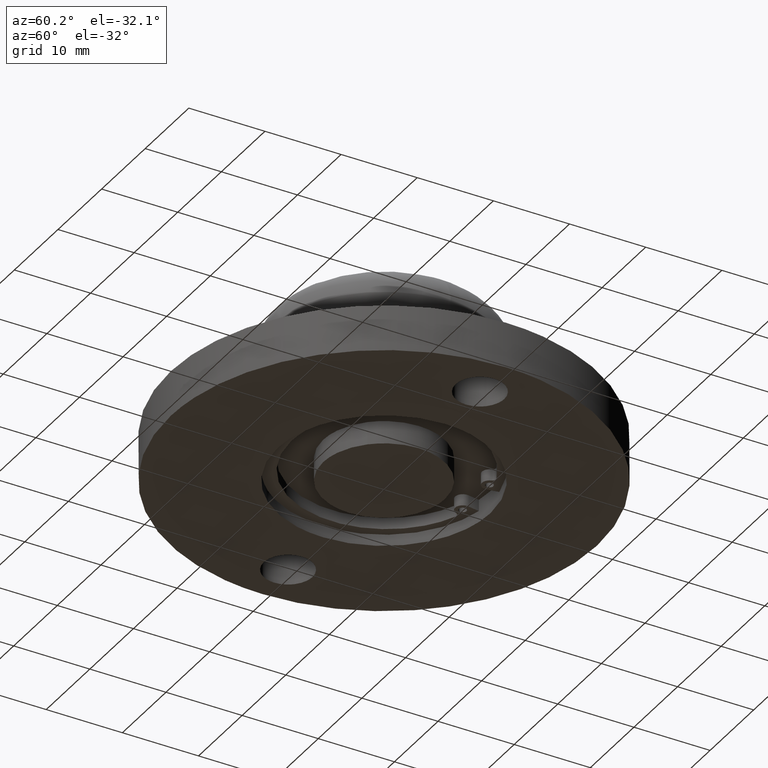
[diagram: clean part render]
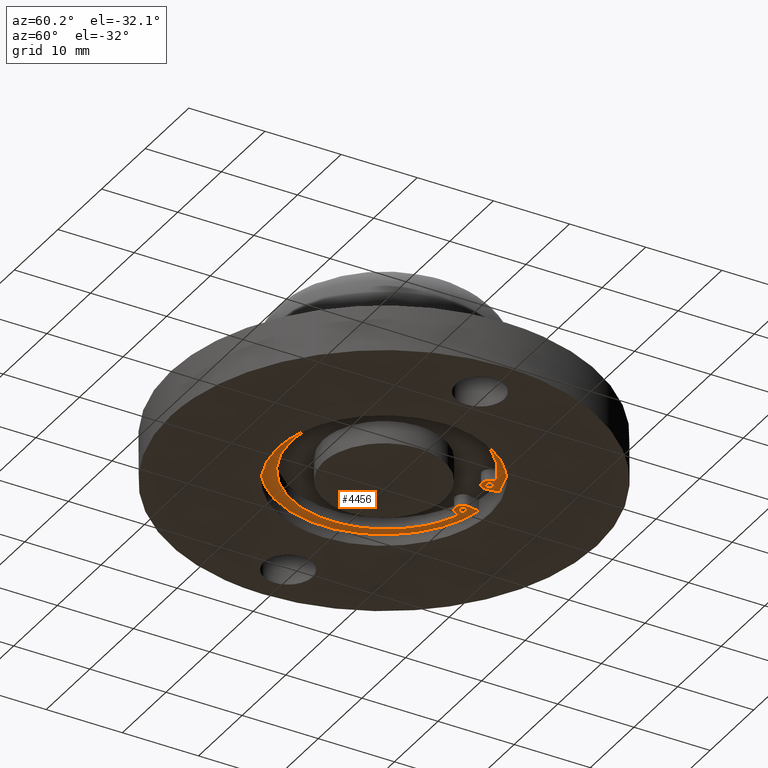
[diagram: same view with one face highlighted and labeled with its STEP entity id]
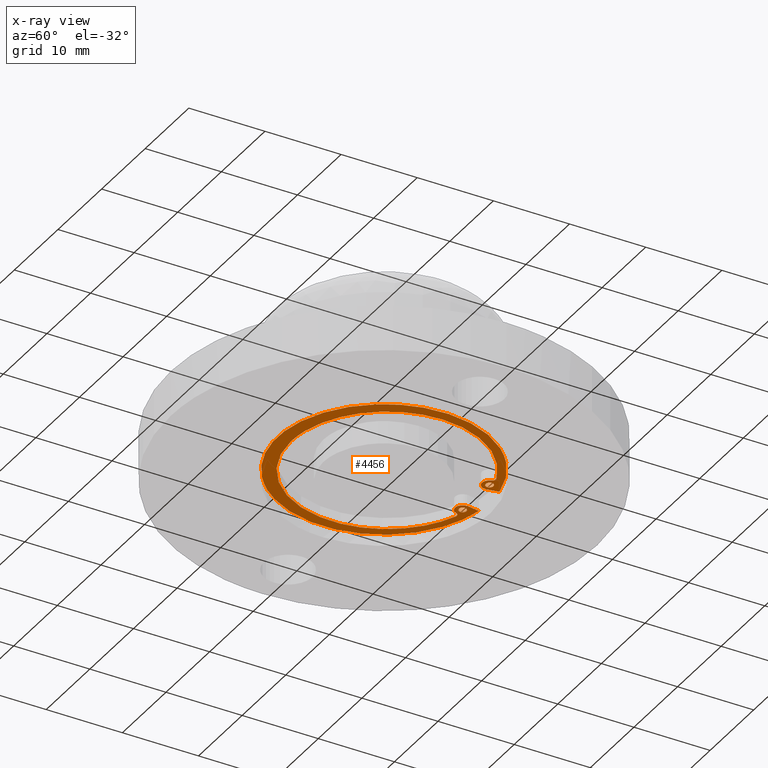
[diagram: x-ray of the same camera — body ghosted, the highlighted face saturated]
A machine part, auxiliary view. The second image highlights one B-rep face of the part: STEP entity #4456.
The next image is the same camera in x-ray: the body ghosted, the highlighted face saturated — about 0% of this face is hidden behind the body in this view.
In plain terms, the highlighted face is a freeform B-spline surface patch.
Its self-contained STEP definition (entity closure, byte-faithful):
#3751=CARTESIAN_POINT('',(2.722137768902407,12.452215655510511,1.500000000000055));
#3752=VERTEX_POINT('',#3751);
#3758=CARTESIAN_POINT('',(3.078764214129789,12.601761372921040,1.500000000000055));
#3759=VERTEX_POINT('',#3758);
#3760=CARTESIAN_POINT('',(2.722137768902407,12.452215655510511,1.500000000000055));
#3761=CARTESIAN_POINT('',(2.774249977008201,12.505421505308250,1.500000000000056));
#3762=CARTESIAN_POINT('',(2.888524818853595,12.578503942384470,1.500000000000055));
#3763=CARTESIAN_POINT('',(3.020857522524926,12.601802445376990,1.500000000000056));
#3764=CARTESIAN_POINT('',(3.078764214129789,12.601761372921040,1.500000000000055));
#3765=B_SPLINE_CURVE_WITH_KNOTS('',3,(#3760,#3761,#3762,#3763,#3764),.UNSPECIFIED.,.F.,.U.,(4,1,4),(0.000000045207384,0.223371099848168,0.397104492770973),.UNSPECIFIED.);
#3766=EDGE_CURVE('',#3752,#3759,#3765,.T.);
#3768=CARTESIAN_POINT('',(3.578762863744187,12.101761372922820,1.500000000000055));
#3769=VERTEX_POINT('',#3768);
#3770=CARTESIAN_POINT('',(3.078764214129789,12.601761372921040,1.500000000000055));
#3771=CARTESIAN_POINT('',(3.152415342333071,12.601865471850330,1.500000000000052));
#3772=CARTESIAN_POINT('',(3.291381861096038,12.570475307681431,1.500000000000061));
#3773=CARTESIAN_POINT('',(3.458926883522719,12.446306666323521,1.500000000000053));
#3774=CARTESIAN_POINT('',(3.557468300696662,12.281739290998960,1.500000000000060));
#3775=CARTESIAN_POINT('',(3.578795339807012,12.159031738632841,1.500000000000053));
#3776=CARTESIAN_POINT('',(3.578762863744187,12.101761372922820,1.500000000000055));
#3777=B_SPLINE_CURVE_WITH_KNOTS('',3,(#3770,#3771,#3772,#3773,#3774,#3775,#3776),.UNSPECIFIED.,.F.,.U.,(4,1,1,1,4),(0.000000119736716,0.220915451757991,0.417282150027502,0.613653481792256,0.785476180471632),.UNSPECIFIED.);
#3778=EDGE_CURVE('',#3759,#3769,#3777,.T.);
#3780=CARTESIAN_POINT('',(3.435387958585883,11.751307090335130,1.500000000000055));
#3781=VERTEX_POINT('',#3780);
#3782=CARTESIAN_POINT('',(3.578762863744187,12.101761372922820,1.500000000000055));
#3783=CARTESIAN_POINT('',(3.578804157275215,12.045126659568391,1.500000000000055));
#3784=CARTESIAN_POINT('',(3.556521087084164,11.915702528659811,1.500000000000055));
#3785=CARTESIAN_POINT('',(3.486522957717738,11.803178025602540,1.500000000000056));
#3786=CARTESIAN_POINT('',(3.435387958585883,11.751307090335130,1.500000000000055));
#3787=B_SPLINE_CURVE_WITH_KNOTS('',3,(#3782,#3783,#3784,#3785,#3786),.UNSPECIFIED.,.F.,.U.,(4,1,4),(0.000000040295690,0.169913630573479,0.388373557718587),.UNSPECIFIED.);
#3788=EDGE_CURVE('',#3769,#3781,#3787,.T.);
#3818=CARTESIAN_POINT('',(3.078761513358499,11.601761372924610,1.500000000000055));
#3819=VERTEX_POINT('',#3818);
#3820=CARTESIAN_POINT('',(3.435387958585883,11.751307090335130,1.500000000000055));
#3821=CARTESIAN_POINT('',(3.383276139484543,11.698098478906021,1.500000000000053));
#3822=CARTESIAN_POINT('',(3.269000089564544,11.625024498050831,1.500000000000061));
#3823=CARTESIAN_POINT('',(3.136670066594230,11.601716776088161,1.500000000000054));
#3824=CARTESIAN_POINT('',(3.078761513358499,11.601761372924610,1.500000000000055));
#3825=B_SPLINE_CURVE_WITH_KNOTS('',3,(#3820,#3821,#3822,#3823,#3824),.UNSPECIFIED.,.F.,.U.,(4,1,4),(0.000000045207418,0.223371099848174,0.397104492770974),.UNSPECIFIED.);
#3826=EDGE_CURVE('',#3781,#3819,#3825,.T.);
#3828=CARTESIAN_POINT('',(2.578762863744104,12.101761372922820,1.500000000000055));
#3829=VERTEX_POINT('',#3828);
#3830=CARTESIAN_POINT('',(3.078761513358499,11.601761372924610,1.500000000000055));
#3831=CARTESIAN_POINT('',(3.005110245835275,11.601657087263410,1.500000000000055));
#3832=CARTESIAN_POINT('',(2.866144044151465,11.633047427547959,1.500000000000058));
#3833=CARTESIAN_POINT('',(2.698598873035842,11.757216587272699,1.500000000000055));
#3834=CARTESIAN_POINT('',(2.600057218289814,11.921782612979801,1.500000000000055));
#3835=CARTESIAN_POINT('',(2.578730373805577,12.044492272144710,1.500000000000056));
#3836=CARTESIAN_POINT('',(2.578762863744104,12.101761372922820,1.500000000000055));
#3837=B_SPLINE_CURVE_WITH_KNOTS('',3,(#3830,#3831,#3832,#3833,#3834,#3835,#3836),.UNSPECIFIED.,.F.,.U.,(4,1,1,1,4),(0.000000119736881,0.220915451758067,0.417282150027529,0.613653481792265,0.785476180471628),.UNSPECIFIED.);
#3838=EDGE_CURVE('',#3819,#3829,#3837,.T.);
#3840=CARTESIAN_POINT('',(2.578762863744104,12.101761372922820,1.500000000000055));
#3841=CARTESIAN_POINT('',(2.578649548295534,12.174597843183960,1.500000000000054));
#3842=CARTESIAN_POINT('',(2.607588431147488,12.303923576518351,1.500000000000058));
#3843=CARTESIAN_POINT('',(2.682413606786092,12.411846178024740,1.500000000000052));
#3844=CARTESIAN_POINT('',(2.722137768902407,12.452215655510511,1.500000000000055));
#3845=B_SPLINE_CURVE_WITH_KNOTS('',3,(#3840,#3841,#3842,#3843,#3844),.UNSPECIFIED.,.F.,.U.,(4,1,4),(0.000000040295621,0.218459967518911,0.388373557718586),.UNSPECIFIED.);
#3846=EDGE_CURVE('',#3829,#3752,#3845,.T.);
#3875=CARTESIAN_POINT('',(-3.435387958585999,12.452215655510511,1.500000000000055));
#3876=VERTEX_POINT('',#3875);
#3882=CARTESIAN_POINT('',(-3.078761513358617,12.601761372921040,1.500000000000055));
#3883=VERTEX_POINT('',#3882);
#3884=CARTESIAN_POINT('',(-3.435387958585999,12.452215655510511,1.500000000000055));
#3885=CARTESIAN_POINT('',(-3.394826756930201,12.493548882660971,1.500000000000056));
#3886=CARTESIAN_POINT('',(-3.285461503733669,12.571600477332851,1.500000000000054));
#3887=CARTESIAN_POINT('',(-3.153235405746683,12.601885750049121,1.500000000000056));
#3888=CARTESIAN_POINT('',(-3.078761513358617,12.601761372921040,1.500000000000055));
#3889=B_SPLINE_CURVE_WITH_KNOTS('',3,(#3884,#3885,#3886,#3887,#3888),.UNSPECIFIED.,.F.,.U.,(4,1,4),(0.000000045207360,0.173733438046691,0.397104492770973),.UNSPECIFIED.);
#3890=EDGE_CURVE('',#3876,#3883,#3889,.T.);
#3892=CARTESIAN_POINT('',(-2.578762863744220,12.101761372922820,1.500000000000055));
#3893=VERTEX_POINT('',#3892);
#3894=CARTESIAN_POINT('',(-3.078761513358617,12.601761372921040,1.500000000000055));
#3895=CARTESIAN_POINT('',(-3.005107755859781,12.601865486478831,1.500000000000054));
#3896=CARTESIAN_POINT('',(-2.866145765376994,12.570475209901639,1.500000000000060));
#3897=CARTESIAN_POINT('',(-2.698598174424232,12.446306546286991,1.500000000000054));
#3898=CARTESIAN_POINT('',(-2.600057551849457,12.281739268574711,1.500000000000054));
#3899=CARTESIAN_POINT('',(-2.578730376229462,12.159031773407280,1.500000000000056));
#3900=CARTESIAN_POINT('',(-2.578762863744220,12.101761372922820,1.500000000000055));
#3901=B_SPLINE_CURVE_WITH_KNOTS('',3,(#3894,#3895,#3896,#3897,#3898,#3899,#3900),.UNSPECIFIED.,.F.,.U.,(4,1,1,1,4),(0.000000119736670,0.220915451757951,0.417282150027443,0.613653481792246,0.785476180471634),.UNSPECIFIED.);
#3902=EDGE_CURVE('',#3883,#3893,#3901,.T.);
#3904=CARTESIAN_POINT('',(-2.722137768902523,11.751307090335130,1.500000000000055));
#3905=VERTEX_POINT('',#3904);
#3906=CARTESIAN_POINT('',(-2.578762863744220,12.101761372922820,1.500000000000055));
#3907=CARTESIAN_POINT('',(-2.578733359441765,12.045127528351710,1.500000000000056));
#3908=CARTESIAN_POINT('',(-2.600985898546697,11.915700659980329,1.500000000000056));
#3909=CARTESIAN_POINT('',(-2.671010463605793,11.803178472104801,1.500000000000055));
#3910=CARTESIAN_POINT('',(-2.722137768902523,11.751307090335130,1.500000000000055));
#3911=B_SPLINE_CURVE_WITH_KNOTS('',3,(#3906,#3907,#3908,#3909,#3910),.UNSPECIFIED.,.F.,.U.,(4,1,4),(0.000000040295643,0.169913630573465,0.388373557718586),.UNSPECIFIED.);
#3912=EDGE_CURVE('',#3893,#3905,#3911,.T.);
#3942=CARTESIAN_POINT('',(-3.078764214129908,11.601761372924610,1.500000000000055));
#3943=VERTEX_POINT('',#3942);
#3944=CARTESIAN_POINT('',(-2.722137768902523,11.751307090335130,1.500000000000055));
#3945=CARTESIAN_POINT('',(-2.762699102116523,11.709972452253210,1.500000000000057));
#3946=CARTESIAN_POINT('',(-2.872064191788603,11.631923543916271,1.500000000000052));
#3947=CARTESIAN_POINT('',(-3.004290320487205,11.601636476099250,1.500000000000057));
#3948=CARTESIAN_POINT('',(-3.078764214129908,11.601761372924610,1.500000000000055));
#3949=B_SPLINE_CURVE_WITH_KNOTS('',3,(#3944,#3945,#3946,#3947,#3948),.UNSPECIFIED.,.F.,.U.,(4,1,4),(0.000000045207417,0.173733438046715,0.397104492770976),.UNSPECIFIED.);
#3950=EDGE_CURVE('',#3905,#3943,#3949,.T.);
#3952=CARTESIAN_POINT('',(-3.578762863744301,12.101761372922820,1.500000000000055));
#3953=VERTEX_POINT('',#3952);
#3954=CARTESIAN_POINT('',(-3.078764214129908,11.601761372924610,1.500000000000055));
#3955=CARTESIAN_POINT('',(-3.152415879236950,11.601656706552690,1.500000000000057));
#3956=CARTESIAN_POINT('',(-3.291381589338082,11.633046386831211,1.500000000000054));
#3957=CARTESIAN_POINT('',(-3.458926694736181,11.757218130210850,1.500000000000058));
#3958=CARTESIAN_POINT('',(-3.557468676940402,11.921780453921990,1.500000000000054));
#3959=CARTESIAN_POINT('',(-3.578794831942873,12.044492886310071,1.500000000000053));
#3960=CARTESIAN_POINT('',(-3.578762863744301,12.101761372922820,1.500000000000055));
#3961=B_SPLINE_CURVE_WITH_KNOTS('',3,(#3954,#3955,#3956,#3957,#3958,#3959,#3960),.UNSPECIFIED.,.F.,.U.,(4,1,1,1,4),(0.000000119736476,0.220915451757821,0.417282150027398,0.613653481792238,0.785476180471628),.UNSPECIFIED.);
#3962=EDGE_CURVE('',#3943,#3953,#3961,.T.);
#3964=CARTESIAN_POINT('',(-3.578762863744301,12.101761372922820,1.500000000000055));
#3965=CARTESIAN_POINT('',(-3.578800270676347,12.158394942405810,1.500000000000054));
#3966=CARTESIAN_POINT('',(-3.556527344292177,12.287820601779650,1.500000000000057));
#3967=CARTESIAN_POINT('',(-3.486519816284100,12.400344683109100,1.500000000000053));
#3968=CARTESIAN_POINT('',(-3.435387958585999,12.452215655510511,1.500000000000055));
#3969=B_SPLINE_CURVE_WITH_KNOTS('',3,(#3964,#3965,#3966,#3967,#3968),.UNSPECIFIED.,.F.,.U.,(4,1,4),(0.000000040295697,0.169913630573505,0.388373557718586),.UNSPECIFIED.);
#3970=EDGE_CURVE('',#3953,#3876,#3969,.T.);
#3996=CARTESIAN_POINT('',(-10.536790458268291,-9.218245323191807,1.500000000002626));
#3997=VERTEX_POINT('',#3996);
#3998=CARTESIAN_POINT('',(-11.711069833858531,-7.671430332505807,1.500000000000055));
#3999=VERTEX_POINT('',#3998);
#4000=CARTESIAN_POINT('',(-10.536790458268291,-9.218245323191807,1.500000000002626));
#4001=CARTESIAN_POINT('',(-10.963394210233840,-8.730652885008571,1.500000000001771));
#4002=CARTESIAN_POINT('',(-11.356075721268990,-8.213386337773663,1.500000000000916));
#4003=CARTESIAN_POINT('',(-11.711069833858531,-7.671430332505807,1.500000000000055));
#4004=B_SPLINE_CURVE_WITH_KNOTS('',3,(#4000,#4001,#4002,#4003),.UNSPECIFIED.,.F.,.U.,(4,4),(2.009641E-010,1.943619268830538),.UNSPECIFIED.);
#4005=EDGE_CURVE('',#3997,#3999,#4004,.T.);
#4015=CARTESIAN_POINT('',(10.536790462711480,9.218245318112924,1.500000000002491));
#4016=VERTEX_POINT('',#4015);
#4022=CARTESIAN_POINT('',(2.354388328041705,13.800610696660520,1.500000000000055));
#4023=VERTEX_POINT('',#4022);
#4024=CARTESIAN_POINT('',(2.354388328041705,13.800610696660520,1.500000000000055));
#4025=CARTESIAN_POINT('',(3.360947227541715,13.629093089097340,1.500000000000338));
#4026=CARTESIAN_POINT('',(4.998841473254596,13.160634431530680,1.500000000000800));
#4027=CARTESIAN_POINT('',(7.213982480033956,12.063675612099431,1.500000000001458));
#4028=CARTESIAN_POINT('',(8.990205516676550,10.810103192612861,1.500000000001999));
#4029=CARTESIAN_POINT('',(10.061285559269431,9.761822162654827,1.500000000002336));
#4030=CARTESIAN_POINT('',(10.536790462711480,9.218245318112924,1.500000000002491));
#4031=B_SPLINE_CURVE_WITH_KNOTS('',3,(#4024,#4025,#4026,#4027,#4028,#4029,#4030),.UNSPECIFIED.,.F.,.U.,(4,1,1,1,4),(7.908064E-009,3.063148942067514,5.080334249613651,7.396382966736281,9.562998874206967),.UNSPECIFIED.);
#4032=EDGE_CURVE('',#4023,#4016,#4031,.T.);
#4051=CARTESIAN_POINT('',(-2.354388328041990,13.800610696660501,1.500000000000055));
#4052=VERTEX_POINT('',#4051);
#4058=CARTESIAN_POINT('',(-11.711069833858531,-7.671430332505807,1.500000000000055));
#4059=CARTESIAN_POINT('',(-12.225882528213630,-6.885801511919865,1.500000000000054));
#4060=CARTESIAN_POINT('',(-12.811697589056999,-5.758100824977150,1.500000000000054));
#4061=CARTESIAN_POINT('',(-13.481871079706339,-3.886338784298007,1.500000000000059));
#4062=CARTESIAN_POINT('',(-13.856094325262321,-2.299338557897576,1.500000000000048));
#4063=CARTESIAN_POINT('',(-14.012719929381030,-0.605395900708236,1.500000000000056));
#4064=CARTESIAN_POINT('',(-13.993189496218790,0.985457298373371,1.500000000000054));
#4065=CARTESIAN_POINT('',(-13.775372309042661,2.782503858538648,1.500000000000049));
#4066=CARTESIAN_POINT('',(-13.250107796612070,4.668573958509186,1.500000000000079));
#4067=CARTESIAN_POINT('',(-12.506268453976450,6.357535590512485,1.500000000000051));
#4068=CARTESIAN_POINT('',(-11.669184582051701,7.795904899233562,1.500000000000060));
#4069=CARTESIAN_POINT('',(-10.774339600018250,8.980209284010419,1.500000000000055));
#4070=CARTESIAN_POINT('',(-9.490799424041192,10.353807852463540,1.500000000000031));
#4071=CARTESIAN_POINT('',(-8.055882205516516,11.523133757246740,1.500000000000039));
#4072=CARTESIAN_POINT('',(-6.395883427348704,12.484640510028280,1.500000000000066));
#4073=CARTESIAN_POINT('',(-4.610112287402300,13.275077071768200,1.500000000000053));
#4074=CARTESIAN_POINT('',(-3.280308055570369,13.642800783663480,1.500000000000042));
#4075=CARTESIAN_POINT('',(-2.354388328041990,13.800610696660501,1.500000000000055));
#4076=B_SPLINE_CURVE_WITH_KNOTS('',3,(#4058,#4059,#4060,#4061,#4062,#4063,#4064,#4065,#4066,#4067,#4068,#4069,#4070,#4071,#4072,#4073,#4074,#4075),.UNSPECIFIED.,.F.,.U.,(4,1,1,1,1,1,1,1,1,1,1,1,1,1,1,4),(0.000000051031968,2.817795199470460,3.793185681533235,5.960732736458539,7.694766942847529,8.886918685611359,10.729339117615400,13.113619112368561,14.739242333230990,16.256525894674770,18.098952661025429,19.182723339008600,21.892150864830711,23.626193645066341,24.926728991593890,27.744506666651631),.UNSPECIFIED.);
#4077=EDGE_CURVE('',#3999,#4052,#4076,.T.);
#4100=CARTESIAN_POINT('',(11.711072325599559,-7.671426528656488,1.500000000000055));
#4101=VERTEX_POINT('',#4100);
#4102=CARTESIAN_POINT('',(11.711072325599559,-7.671426528656488,1.500000000000055));
#4103=CARTESIAN_POINT('',(11.195731785309061,-8.458363737137667,1.500000000000227));
#4104=CARTESIAN_POINT('',(10.026823415456651,-9.901465162230650,1.500000000000597));
#4105=CARTESIAN_POINT('',(8.051849678945077,-11.538570881878091,1.500000000001044));
#4106=CARTESIAN_POINT('',(5.887413210868038,-12.775936514212921,1.500000000001485));
#4107=CARTESIAN_POINT('',(3.858975137421617,-13.516769796134010,1.500000000001812));
#4108=CARTESIAN_POINT('',(1.844897285072659,-13.915323753977161,1.500000000002073));
#4109=CARTESIAN_POINT('',(0.199275075766148,-14.029736105985730,1.500000000002279));
#4110=CARTESIAN_POINT('',(-1.413630724756695,-13.955862625174669,1.500000000002427));
#4111=CARTESIAN_POINT('',(-2.876793807292395,-13.729115349622740,1.500000000002547));
#4112=CARTESIAN_POINT('',(-4.371429843322160,-13.328727193513091,1.500000000002637));
#4113=CARTESIAN_POINT('',(-5.877534310172078,-12.745075580477160,1.500000000002701));
#4114=CARTESIAN_POINT('',(-7.242386822935414,-12.013375071303040,1.500000000002730));
#4115=CARTESIAN_POINT('',(-8.879735386561336,-10.893034952685960,1.500000000002728));
#4116=CARTESIAN_POINT('',(-9.895420759989463,-9.951615461287652,1.500000000002670));
#4117=CARTESIAN_POINT('',(-10.536790458268291,-9.218245323191807,1.500000000002626));
#4118=B_SPLINE_CURVE_WITH_KNOTS('',3,(#4102,#4103,#4104,#4105,#4106,#4107,#4108,#4109,#4110,#4111,#4112,#4113,#4114,#4115,#4116,#4117),.UNSPECIFIED.,.F.,.U.,(4,1,1,1,1,1,1,1,1,1,1,1,1,4),(0.000000050756967,2.821969451097893,5.543163440735391,7.659651861614545,10.280054218823841,11.993392998993260,13.807510751021759,15.218481051167180,16.831046369520219,18.242045866268729,19.854606436801390,21.668744495168148,22.878168826655710,25.800907537017459),.UNSPECIFIED.);
#4119=EDGE_CURVE('',#4101,#3997,#4118,.T.);
#4121=CARTESIAN_POINT('',(10.536790462711480,9.218245318112924,1.500000000002491));
#4122=CARTESIAN_POINT('',(11.222817998361410,8.434388914639126,1.500000000002447));
#4123=CARTESIAN_POINT('',(12.173889958026500,7.064739038449653,1.500000000002314));
#4124=CARTESIAN_POINT('',(13.142243232507621,4.950891793384298,1.500000000002122));
#4125=CARTESIAN_POINT('',(13.744761881460249,2.951140970197095,1.500000000001845));
#4126=CARTESIAN_POINT('',(14.046223497594980,0.737957579408912,1.500000000001559));
#4127=CARTESIAN_POINT('',(13.979959089509910,-1.327384701276739,1.500000000001240));
#4128=CARTESIAN_POINT('',(13.634271393477960,-3.384813781597943,1.500000000000892));
#4129=CARTESIAN_POINT('',(12.970327555469760,-5.468149970440837,1.500000000000512));
#4130=CARTESIAN_POINT('',(12.178133976578840,-6.958549363575427,1.500000000000209));
#4131=CARTESIAN_POINT('',(11.711072325599559,-7.671426528656488,1.500000000000055));
#4132=B_SPLINE_CURVE_WITH_KNOTS('',3,(#4121,#4122,#4123,#4124,#4125,#4126,#4127,#4128,#4129,#4130,#4131),.UNSPECIFIED.,.F.,.U.,(4,1,1,1,1,1,1,1,4),(0.000000027422857,3.124937078245594,4.971495931735324,6.960101592295260,9.374805131210152,11.647492772117349,13.138946761789470,15.624704468139489,18.181464813700920),.UNSPECIFIED.);
#4133=EDGE_CURVE('',#4016,#4101,#4132,.T.);
#4289=CARTESIAN_POINT('',(-15.396932792451871,15.189228898654560,1.500000000000000));
#4290=CARTESIAN_POINT('',(15.396345512092481,15.189228898654560,1.500000000000000));
#4291=CARTESIAN_POINT('',(-15.396932792451871,-15.388173533827191,1.500000000000000));
#4292=CARTESIAN_POINT('',(15.396345512092481,-15.388173533827191,1.500000000000000));
#4293=B_SPLINE_SURFACE_WITH_KNOTS('',1,1,((#4289,#4291),(#4290,#4292)),.UNSPECIFIED.,.F.,.F.,.U.,(2,2),(2,2),(0.0,30.793278304544359),(0.0,30.577402432481751),.UNSPECIFIED.);
#4294=CARTESIAN_POINT('',(4.029021675524880,11.787561467407100,1.500000000000055));
#4295=VERTEX_POINT('',#4294);
#4296=CARTESIAN_POINT('',(4.689849709970910,12.094670140618980,1.500000000000055));
#4297=VERTEX_POINT('',#4296);
#4298=CARTESIAN_POINT('',(4.029021675524880,11.787561467407100,1.500000000000055));
#4299=CARTESIAN_POINT('',(4.052940516848464,11.860291585230430,1.500000000000054));
#4300=CARTESIAN_POINT('',(4.130544179746805,11.986782965685819,1.500000000000058));
#4301=CARTESIAN_POINT('',(4.303916420843682,12.102425764790560,1.500000000000053));
#4302=CARTESIAN_POINT('',(4.498507017641606,12.142906098244611,1.500000000000056));
#4303=CARTESIAN_POINT('',(4.626719845609131,12.120071167027490,1.500000000000056));
#4304=CARTESIAN_POINT('',(4.689849709970910,12.094670140618980,1.500000000000055));
#4305=B_SPLINE_CURVE_WITH_KNOTS('',3,(#4298,#4299,#4300,#4301,#4302,#4303,#4304),.UNSPECIFIED.,.F.,.U.,(4,1,1,1,4),(-0.000003928598109,0.229647827348907,0.433764449186451,0.612385029221824,0.816513918230880),.UNSPECIFIED.);
#4306=EDGE_CURVE('',#4295,#4297,#4305,.T.);
#4307=ORIENTED_EDGE('',*,*,#4306,.F.);
#4308=CARTESIAN_POINT('',(2.814102910321738,11.136531608023409,1.500000000000055));
#4309=VERTEX_POINT('',#4308);
#4310=CARTESIAN_POINT('',(4.029021675524880,11.787561467407100,1.500000000000055));
#4311=CARTESIAN_POINT('',(3.991802690795355,11.674757903366620,1.500000000000054));
#4312=CARTESIAN_POINT('',(3.872732178504551,11.455598071641420,1.500000000000055));
#4313=CARTESIAN_POINT('',(3.627280047210285,11.246491702478480,1.500000000000055));
#4314=CARTESIAN_POINT('',(3.342214396562515,11.123041602287140,1.500000000000060));
#4315=CARTESIAN_POINT('',(3.079755072099785,11.087143067688510,1.500000000000052));
#4316=CARTESIAN_POINT('',(2.890464401659838,11.115588946007840,1.500000000000058));
#4317=CARTESIAN_POINT('',(2.814102910321738,11.136531608023409,1.500000000000055));
#4318=B_SPLINE_CURVE_WITH_KNOTS('',3,(#4310,#4311,#4312,#4313,#4314,#4315,#4316,#4317),.UNSPECIFIED.,.F.,.U.,(4,1,1,1,1,4),(0.000000141108457,0.356348961474092,0.736473239680413,0.950247383469148,1.282856949029121,1.520418713886798),.UNSPECIFIED.);
#4319=EDGE_CURVE('',#4295,#4309,#4318,.T.);
#4320=ORIENTED_EDGE('',*,*,#4319,.T.);
#4321=CARTESIAN_POINT('',(2.101142949770415,12.316173811450700,1.500000000000055));
#4322=VERTEX_POINT('',#4321);
#4323=CARTESIAN_POINT('',(2.814102910321738,11.136531608023409,1.500000000000055));
#4324=CARTESIAN_POINT('',(2.699512550130872,11.167853658807861,1.500000000000056));
#4325=CARTESIAN_POINT('',(2.518124348659467,11.254686465056039,1.500000000000054));
#4326=CARTESIAN_POINT('',(2.283031805402444,11.470295735959491,1.500000000000054));
#4327=CARTESIAN_POINT('',(2.123880375300823,11.740694223651779,1.500000000000054));
#4328=CARTESIAN_POINT('',(2.065565816099971,12.048329841527121,1.500000000000066));
#4329=CARTESIAN_POINT('',(2.084174151241214,12.238831876372601,1.500000000000037));
#4330=CARTESIAN_POINT('',(2.101142949770415,12.316173811450700,1.500000000000055));
#4331=B_SPLINE_CURVE_WITH_KNOTS('',3,(#4323,#4324,#4325,#4326,#4327,#4328,#4329,#4330),.UNSPECIFIED.,.F.,.U.,(4,1,1,1,1,4),(0.000000141108351,0.356348979015470,0.593915875827507,0.950247430244075,1.282857012178666,1.520418788730245),.UNSPECIFIED.);
#4332=EDGE_CURVE('',#4309,#4322,#4331,.T.);
#4333=ORIENTED_EDGE('',*,*,#4332,.T.);
#4334=CARTESIAN_POINT('',(2.354388328041705,13.800610696660520,1.500000000000055));
#4335=CARTESIAN_POINT('',(2.101142949770415,12.316173811450700,1.500000000000055));
#4336=QUASI_UNIFORM_CURVE('',1,(#4334,#4335),.UNSPECIFIED.,.F.,.U.);
#4337=EDGE_CURVE('',#4023,#4322,#4336,.T.);
#4338=ORIENTED_EDGE('',*,*,#4337,.F.);
#4339=ORIENTED_EDGE('',*,*,#4032,.T.);
#4340=ORIENTED_EDGE('',*,*,#4133,.T.);
#4341=ORIENTED_EDGE('',*,*,#4119,.T.);
#4342=ORIENTED_EDGE('',*,*,#4005,.T.);
#4343=ORIENTED_EDGE('',*,*,#4077,.T.);
#4344=CARTESIAN_POINT('',(-2.101142949770040,12.316173811447920,1.500000000000055));
#4345=VERTEX_POINT('',#4344);
#4346=CARTESIAN_POINT('',(-2.101142949770040,12.316173811447920,1.500000000000055));
#4347=CARTESIAN_POINT('',(-2.354388328041990,13.800610696660501,1.500000000000055));
#4348=QUASI_UNIFORM_CURVE('',1,(#4346,#4347),.UNSPECIFIED.,.F.,.U.);
#4349=EDGE_CURVE('',#4345,#4052,#4348,.T.);
#4350=ORIENTED_EDGE('',*,*,#4349,.F.);
#4351=CARTESIAN_POINT('',(-2.814102838149120,11.136531627812770,1.500000000000055));
#4352=VERTEX_POINT('',#4351);
#4353=CARTESIAN_POINT('',(-2.101142949770040,12.316173811447920,1.500000000000055));
#4354=CARTESIAN_POINT('',(-2.066877819291140,12.161468367391009,1.500000000000053));
#4355=CARTESIAN_POINT('',(-2.072470649842374,11.925463555855851,1.500000000000060));
#4356=CARTESIAN_POINT('',(-2.186424175737569,11.627957677749730,1.500000000000050));
#4357=CARTESIAN_POINT('',(-2.317754425359866,11.437200976791299,1.500000000000058));
#4358=CARTESIAN_POINT('',(-2.525383283759589,11.251219922661360,1.500000000000054));
#4359=CARTESIAN_POINT('',(-2.699509645925163,11.167849662021069,1.500000000000057));
#4360=CARTESIAN_POINT('',(-2.814102838149120,11.136531627812770,1.500000000000055));
#4361=B_SPLINE_CURVE_WITH_KNOTS('',3,(#4353,#4354,#4355,#4356,#4357,#4358,#4359,#4360),.UNSPECIFIED.,.F.,.U.,(4,1,1,1,1,4),(0.000000141108595,0.475138563181750,0.688950726541190,0.950247383468270,1.164071962530951,1.520418713885378),.UNSPECIFIED.);
#4362=EDGE_CURVE('',#4345,#4352,#4361,.T.);
#4363=ORIENTED_EDGE('',*,*,#4362,.T.);
#4364=CARTESIAN_POINT('',(-4.029021675525124,11.787561467407119,1.500000000000055));
#4365=VERTEX_POINT('',#4364);
#4366=CARTESIAN_POINT('',(-2.814102838149120,11.136531627812770,1.500000000000055));
#4367=CARTESIAN_POINT('',(-2.959185456093083,11.096505793856871,1.500000000000053));
#4368=CARTESIAN_POINT('',(-3.210693989020049,11.086312539269020,1.500000000000060));
#4369=CARTESIAN_POINT('',(-3.551739948936786,11.201568910950460,1.500000000000053));
#4370=CARTESIAN_POINT('',(-3.842787638369280,11.415624139504549,1.500000000000048));
#4371=CARTESIAN_POINT('',(-3.981996887753983,11.644607627604969,1.500000000000068));
#4372=CARTESIAN_POINT('',(-4.029021675525124,11.787561467407119,1.500000000000055));
#4373=B_SPLINE_CURVE_WITH_KNOTS('',3,(#4366,#4367,#4368,#4369,#4370,#4371,#4372),.UNSPECIFIED.,.F.,.U.,(4,1,1,1,4),(0.000000141108729,0.451377800352083,0.736473275934987,1.069043522456270,1.520418788728837),.UNSPECIFIED.);
#4374=EDGE_CURVE('',#4352,#4365,#4373,.T.);
#4375=ORIENTED_EDGE('',*,*,#4374,.T.);
#4376=CARTESIAN_POINT('',(-4.689849709971110,12.094670140618961,1.500000000000055));
#4377=VERTEX_POINT('',#4376);
#4378=CARTESIAN_POINT('',(-4.689849709971110,12.094670140618961,1.500000000000055));
#4379=CARTESIAN_POINT('',(-4.618835382338912,12.123279030078990,1.500000000000056));
#4380=CARTESIAN_POINT('',(-4.472110425383539,12.145521881465870,1.500000000000053));
#4381=CARTESIAN_POINT('',(-4.271930752292312,12.087560635849339,1.500000000000056));
#4382=CARTESIAN_POINT('',(-4.115522894275242,11.964920682820051,1.500000000000051));
#4383=CARTESIAN_POINT('',(-4.050309800254634,11.852194324447130,1.500000000000060));
#4384=CARTESIAN_POINT('',(-4.029021675525124,11.787561467407119,1.500000000000055));
#4385=B_SPLINE_CURVE_WITH_KNOTS('',3,(#4378,#4379,#4380,#4381,#4382,#4383,#4384),.UNSPECIFIED.,.F.,.U.,(4,1,1,1,4),(-0.000003928598288,0.229647827348831,0.433764449186403,0.612385029221784,0.816513918230845),.UNSPECIFIED.);
#4386=EDGE_CURVE('',#4377,#4365,#4385,.T.);
#4387=ORIENTED_EDGE('',*,*,#4386,.F.);
#4388=CARTESIAN_POINT('',(-0.000001174504180,-12.199999999999941,1.500000000000055));
#4389=VERTEX_POINT('',#4388);
#4390=CARTESIAN_POINT('',(-0.000001174504180,-12.199999999999941,1.500000000000055));
#4391=CARTESIAN_POINT('',(-0.769831130901664,-12.200066382789370,1.500000000000054));
#4392=CARTESIAN_POINT('',(-2.309477224875312,-12.058481585410361,1.500000000000057));
#4393=CARTESIAN_POINT('',(-4.410304056692526,-11.465900723191311,1.500000000000054));
#4394=CARTESIAN_POINT('',(-6.113782433442365,-10.659552248596590,1.500000000000056));
#4395=CARTESIAN_POINT('',(-7.503864138048044,-9.760384571580003,1.500000000000061));
#4396=CARTESIAN_POINT('',(-8.915003948674160,-8.582879909579118,1.500000000000031));
#4397=CARTESIAN_POINT('',(-10.106283263915550,-7.207031262737074,1.500000000000108));
#4398=CARTESIAN_POINT('',(-11.025507065604989,-5.749316700279049,1.500000000000073));
#4399=CARTESIAN_POINT('',(-11.772730226937190,-4.221615329414719,1.500000000000006));
#4400=CARTESIAN_POINT('',(-12.383708061991600,-2.291884431644021,1.500000000000130));
#4401=CARTESIAN_POINT('',(-12.632585691095301,-0.237810780772341,1.500000000000033));
#4402=CARTESIAN_POINT('',(-12.570644258138310,1.802642450746085,1.500000000000039));
#4403=CARTESIAN_POINT('',(-12.246845391076731,3.569462797211541,1.500000000000135));
#4404=CARTESIAN_POINT('',(-11.687474584980050,5.176343012699563,1.499999999999876));
#4405=CARTESIAN_POINT('',(-11.033094346997020,6.546971885324954,1.500000000000143));
#4406=CARTESIAN_POINT('',(-10.268615726245461,7.755440459006970,1.500000000000024));
#4407=CARTESIAN_POINT('',(-9.307133951655510,8.931455688946766,1.500000000000064));
#4408=CARTESIAN_POINT('',(-8.059359681540888,10.153536203458620,1.500000000000024));
#4409=CARTESIAN_POINT('',(-6.502547763648369,11.261629303339269,1.500000000000140));
#4410=CARTESIAN_POINT('',(-5.236243022470426,11.875562971045280,1.499999999999962));
#4411=CARTESIAN_POINT('',(-4.689849709971110,12.094670140618961,1.500000000000055));
#4412=B_SPLINE_CURVE_WITH_KNOTS('',3,(#4390,#4391,#4392,#4393,#4394,#4395,#4396,#4397,#4398,#4399,#4400,#4401,#4402,#4403,#4404,#4405,#4406,#4407,#4408,#4409,#4410,#4411),.UNSPECIFIED.,.F.,.U.,(4,1,1,1,1,1,1,1,1,1,1,1,1,1,1,1,1,1,1,4),(0.000000109980625,2.309482121007662,4.619008434218319,6.520980399643438,7.947451992257726,9.577705896684751,12.023082175503410,13.381639433989790,14.740185243116541,17.117637427884208,19.427100131240639,20.921490982901300,23.231009176848129,24.793333936819948,26.016026333946940,27.782138068676652,29.072753031773122,30.567156362808841,33.012528141657732,34.778603336587970),.UNSPECIFIED.);
#4413=EDGE_CURVE('',#4389,#4377,#4412,.T.);
#4414=ORIENTED_EDGE('',*,*,#4413,.F.);
#4415=CARTESIAN_POINT('',(4.689849709970910,12.094670140618980,1.500000000000055));
#4416=CARTESIAN_POINT('',(5.278290923089239,11.858727291612491,1.500000000000056));
#4417=CARTESIAN_POINT('',(6.419432037706250,11.297735557071629,1.500000000000054));
#4418=CARTESIAN_POINT('',(8.134384701867759,10.104829487343450,1.500000000000056));
#4419=CARTESIAN_POINT('',(9.718792766728315,8.536411349627464,1.500000000000048));
#4420=CARTESIAN_POINT('',(11.031742508072909,6.624590823637094,1.500000000000056));
#4421=CARTESIAN_POINT('',(11.994550855675680,4.490889657291374,1.500000000000054));
#4422=CARTESIAN_POINT('',(12.482526859310520,2.478499786773301,1.500000000000057));
#4423=CARTESIAN_POINT('',(12.641472289568620,0.466023805306743,1.500000000000068));
#4424=CARTESIAN_POINT('',(12.541261975286460,-1.166447457802752,1.500000000000010));
#4425=CARTESIAN_POINT('',(12.196668182128221,-2.901217757200872,1.500000000000099));
#4426=CARTESIAN_POINT('',(11.710211890209729,-4.342678557884995,1.500000000000040));
#4427=CARTESIAN_POINT('',(10.967279190061969,-5.872208575040808,1.500000000000057));
#4428=CARTESIAN_POINT('',(9.936325641803132,-7.449912847860045,1.500000000000054));
#4429=CARTESIAN_POINT('',(8.600801038226509,-8.879582135104895,1.500000000000054));
#4430=CARTESIAN_POINT('',(7.063430354417638,-10.080271800886790,1.500000000000064));
#4431=CARTESIAN_POINT('',(5.337723125405720,-11.087667865124800,1.500000000000011));
#4432=CARTESIAN_POINT('',(2.943379256253989,-11.962790442454260,1.500000000000197));
#4433=CARTESIAN_POINT('',(1.041553947468179,-12.200277149801741,1.499999999999815));
#4434=CARTESIAN_POINT('',(-0.000001174504180,-12.199999999999941,1.500000000000055));
#4435=B_SPLINE_CURVE_WITH_KNOTS('',3,(#4415,#4416,#4417,#4418,#4419,#4420,#4421,#4422,#4423,#4424,#4425,#4426,#4427,#4428,#4429,#4430,#4431,#4432,#4433,#4434),.UNSPECIFIED.,.F.,.U.,(4,1,1,1,1,1,1,1,1,1,1,1,1,1,1,1,1,4),(0.000000109810472,1.901941977466578,3.803907809107489,6.249277243776508,8.558798894987675,10.732470604110199,13.245788095567949,14.740186238610660,16.777998262361830,18.136458103494029,20.038449209581842,21.329039794259199,23.231010745853059,25.676392065644460,27.170790606726062,29.072754995384770,31.653999880602228,34.778605685604788),.UNSPECIFIED.);
#4436=EDGE_CURVE('',#4297,#4389,#4435,.T.);
#4437=ORIENTED_EDGE('',*,*,#4436,.F.);
#4438=EDGE_LOOP('',(#4307,#4320,#4333,#4338,#4339,#4340,#4341,#4342,#4343,#4350,#4363,#4375,#4387,#4414,#4437));
#4439=FACE_OUTER_BOUND('',#4438,.T.);
#4440=ORIENTED_EDGE('',*,*,#3902,.F.);
#4441=ORIENTED_EDGE('',*,*,#3890,.F.);
#4442=ORIENTED_EDGE('',*,*,#3970,.F.);
#4443=ORIENTED_EDGE('',*,*,#3962,.F.);
#4444=ORIENTED_EDGE('',*,*,#3950,.F.);
#4445=ORIENTED_EDGE('',*,*,#3912,.F.);
#4446=EDGE_LOOP('',(#4440,#4441,#4442,#4443,#4444,#4445));
#4447=FACE_BOUND('',#4446,.T.);
#4448=ORIENTED_EDGE('',*,*,#3778,.F.);
#4449=ORIENTED_EDGE('',*,*,#3766,.F.);
#4450=ORIENTED_EDGE('',*,*,#3846,.F.);
#4451=ORIENTED_EDGE('',*,*,#3838,.F.);
#4452=ORIENTED_EDGE('',*,*,#3826,.F.);
#4453=ORIENTED_EDGE('',*,*,#3788,.F.);
#4454=EDGE_LOOP('',(#4448,#4449,#4450,#4451,#4452,#4453));
#4455=FACE_BOUND('',#4454,.T.);
#4456=ADVANCED_FACE('',(#4439,#4447,#4455),#4293,.T.);